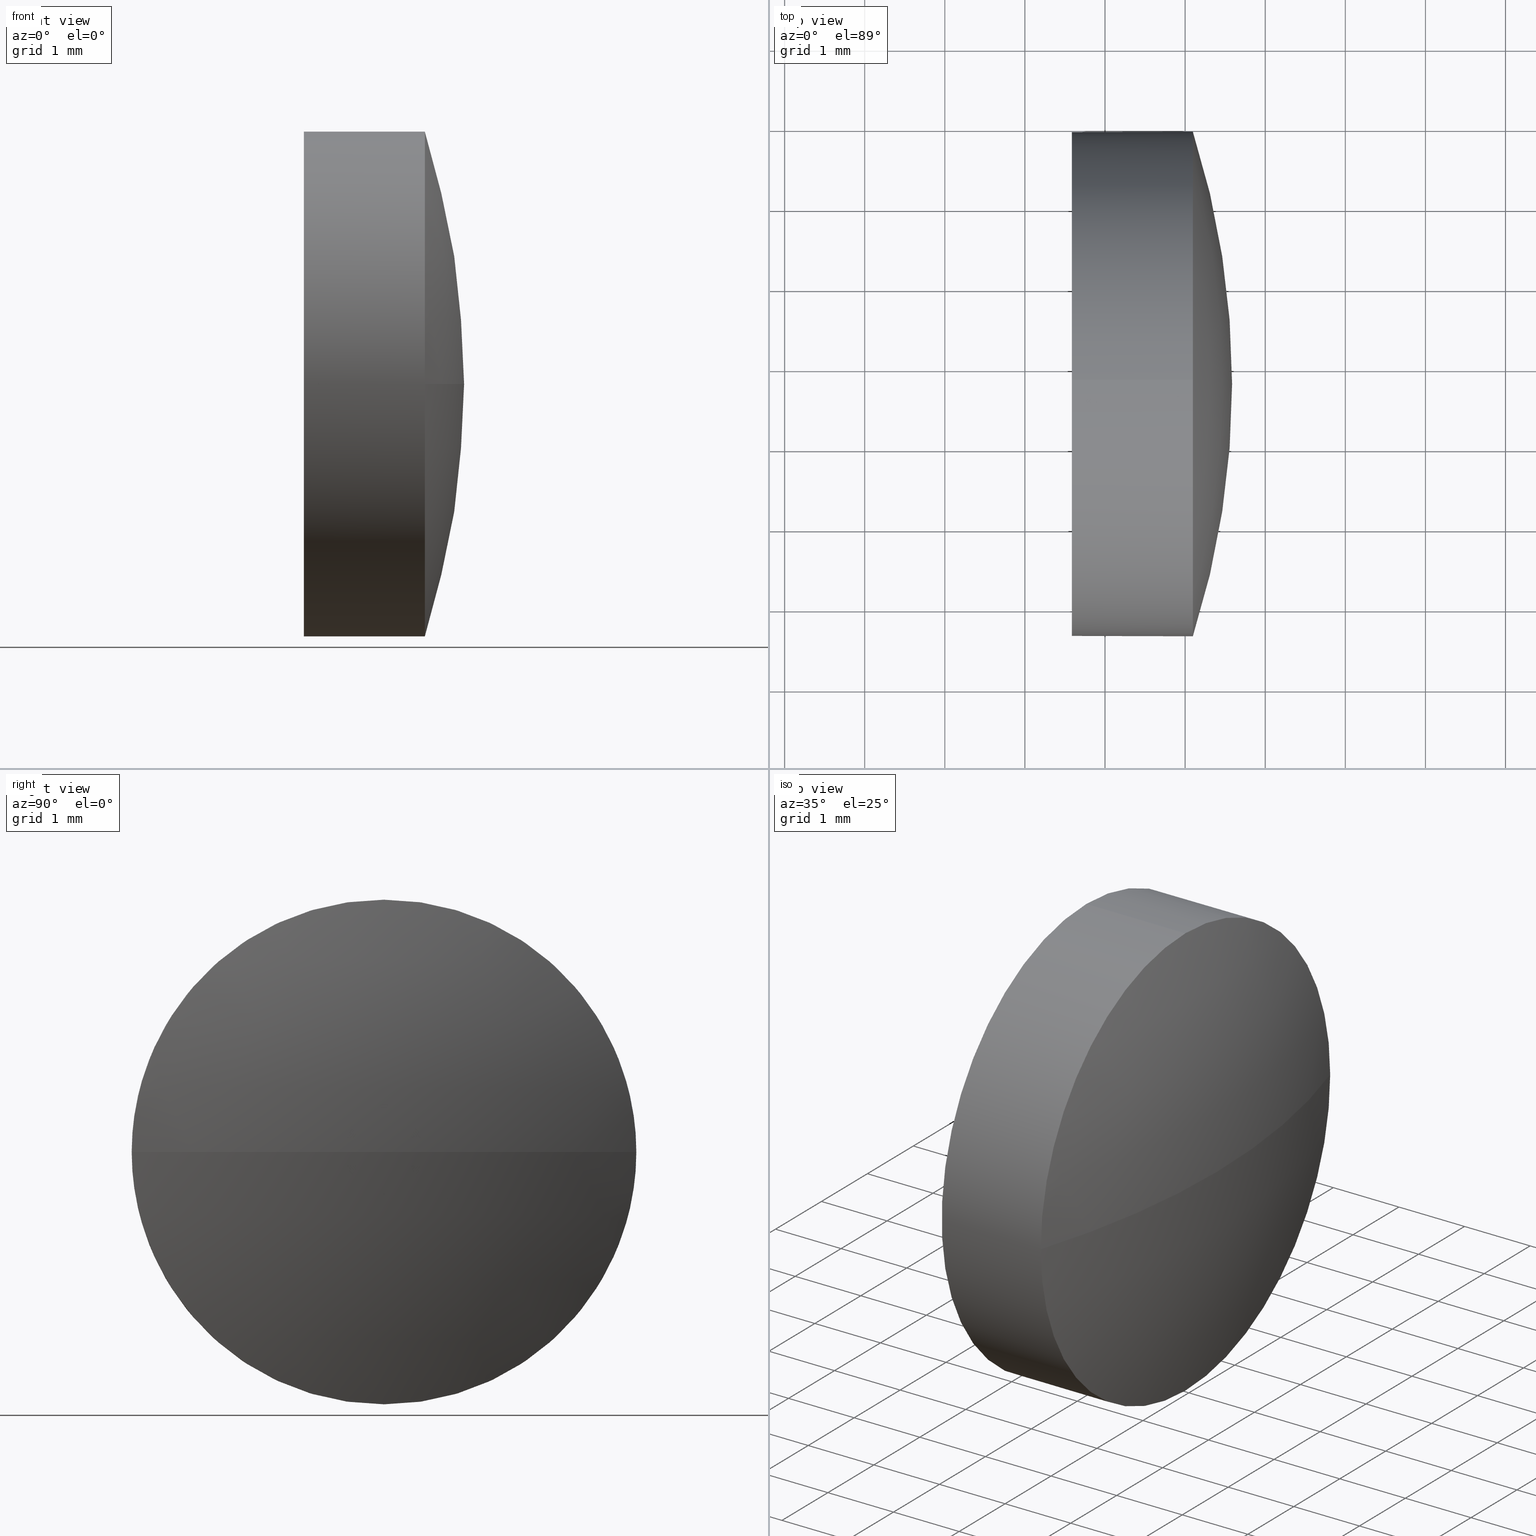
[diagram: canonical four-view strip — front | top / right | iso, engineering-drawing reading convention]
A machine part, canonical four-view strip (front | top / right | iso — engineering-drawing reading convention). The complete STEP part file that produces these views, byte-faithful:
ISO-10303-21;
HEADER;
FILE_DESCRIPTION (( 'STEP AP214' ),
    '1' );
FILE_NAME ('100010.STEP',
    '2019-04-19T06:21:23',
    ( '' ),
    ( '' ),
    'SwSTEP 2.0',
    'SolidWorks 2016',
    '' );
FILE_SCHEMA (( 'AUTOMOTIVE_DESIGN' ));
ENDSEC;

DATA;
#1 = CARTESIAN_POINT ( 'NONE',  ( 499.5865941383895000, 112.7888820155200000, 0.0000000000000000000 ) ) ;
#2 =( NAMED_UNIT ( * ) PLANE_ANGLE_UNIT ( ) SI_UNIT ( $, .RADIAN. ) );
#3 = FILL_AREA_STYLE_COLOUR ( '', #139 ) ;
#4 = CARTESIAN_POINT ( 'NONE',  ( 499.0965941383895500, 112.7888820155200200, 0.0000000000000000000 ) ) ;
#5 = PRESENTATION_STYLE_ASSIGNMENT (( #88 ) ) ;
#6 = DIRECTION ( 'NONE',  ( -0.0000000000000000000, 0.0000000000000000000, 1.000000000000000000 ) ) ;
#7 = SURFACE_SIDE_STYLE ('',( #86 ) ) ;
#8 = STYLED_ITEM ( 'NONE', ( #104 ), #20 ) ;
#9 = DIRECTION ( 'NONE',  ( 0.0000000000000000000, 0.0000000000000000000, 1.000000000000000000 ) ) ;
#10 = CIRCLE ( 'NONE', #114, 3.149999999999999900 ) ;
#11 = DIRECTION ( 'NONE',  ( -1.000000000000000000, -0.0000000000000000000, -0.0000000000000000000 ) ) ;
#12 = FACE_OUTER_BOUND ( 'NONE', #133, .T. ) ;
#13 = ORIENTED_EDGE ( 'NONE', *, *, #16, .F. ) ;
#14 = FACE_OUTER_BOUND ( 'NONE', #40, .T. ) ;
#15 = ORIENTED_EDGE ( 'NONE', *, *, #157, .T. ) ;
#16 = EDGE_CURVE ( 'NONE', #123, #110, #154, .T. ) ;
#17 = CARTESIAN_POINT ( 'NONE',  ( 499.0965941383895500, 112.7888820155200200, 0.0000000000000000000 ) ) ;
#18 = CYLINDRICAL_SURFACE ( 'NONE', #27, 3.149999999999999900 ) ;
#19 = FILL_AREA_STYLE ('',( #3 ) ) ;
#20 = MANIFOLD_SOLID_BREP ( '��ת1', #70 ) ;
#21 = DIRECTION ( 'NONE',  ( 1.000000000000000000, 0.0000000000000000000, 0.0000000000000000000 ) ) ;
#22 = EDGE_CURVE ( 'NONE', #118, #127, #58, .T. ) ;
#23 = ADVANCED_FACE ( 'NONE', ( #79 ), #69, .T. ) ;
#24 = CIRCLE ( 'NONE', #167, 3.149999999999999900 ) ;
#25 = VECTOR ( 'NONE', #166, 1000.000000000000000 ) ;
#26 = DIRECTION ( 'NONE',  ( -0.0000000000000000000, 0.0000000000000000000, -1.000000000000000000 ) ) ;
#27 = AXIS2_PLACEMENT_3D ( 'NONE', #174, #32, #92 ) ;
#28 = UNCERTAINTY_MEASURE_WITH_UNIT (LENGTH_MEASURE( 1.000000000000000100E-005 ), #137, 'distance_accuracy_value', 'NONE');
#29 = EDGE_LOOP ( 'NONE', ( #90, #107 ) ) ;
#30 = AXIS2_PLACEMENT_3D ( 'NONE', #101, #9, #112 ) ;
#31 = PLANE ( 'NONE',  #50 ) ;
#32 = DIRECTION ( 'NONE',  ( -1.000000000000000000, -0.0000000000000000000, -0.0000000000000000000 ) ) ;
#33 = PRODUCT_DEFINITION_SHAPE ( 'NONE', 'NONE',  #43 ) ;
#34 = CARTESIAN_POINT ( 'NONE',  ( 479.1000143024504000, 112.7888820155200200, 0.0000000000000000000 ) ) ;
#35 = EDGE_CURVE ( 'NONE', #186, #110, #136, .T. ) ;
#36 = CIRCLE ( 'NONE', #124, 10.36999999999999000 ) ;
#37 =( LENGTH_UNIT ( ) NAMED_UNIT ( * ) SI_UNIT ( .MILLI., .METRE. ) );
#38 = VERTEX_POINT ( 'NONE', #84 ) ;
#39 = CARTESIAN_POINT ( 'NONE',  ( 497.5865941383895000, 112.7888820155200200, -3.149999999999999900 ) ) ;
#40 = EDGE_LOOP ( 'NONE', ( #87, #15, #175, #151, #138 ) ) ;
#41 = PRODUCT_CONTEXT ( 'NONE', #129, 'mechanical' ) ;
#42 = ORIENTED_EDGE ( 'NONE', *, *, #162, .T. ) ;
#43 = PRODUCT_DEFINITION ( 'δ֪', '', #83, #169 ) ;
#44 = DIRECTION ( 'NONE',  ( 0.0000000000000000000, 0.0000000000000000000, 1.000000000000000000 ) ) ;
#45 = ORIENTED_EDGE ( 'NONE', *, *, #63, .T. ) ;
#46 = UNCERTAINTY_MEASURE_WITH_UNIT (LENGTH_MEASURE( 1.000000000000000100E-005 ), #62, 'distance_accuracy_value', 'NONE');
#47 = PRODUCT_RELATED_PRODUCT_CATEGORY ( 'part', '', ( #183 ) ) ;
#48 = EDGE_CURVE ( 'NONE', #180, #186, #141, .T. ) ;
#49 = ORIENTED_EDGE ( 'NONE', *, *, #91, .F. ) ;
#50 = AXIS2_PLACEMENT_3D ( 'NONE', #159, #134, #95 ) ;
#51 = DIRECTION ( 'NONE',  ( 0.0000000000000000000, 0.0000000000000000000, 1.000000000000000000 ) ) ;
#52 = ADVANCED_FACE ( 'NONE', ( #149 ), #31, .F. ) ;
#53 = CARTESIAN_POINT ( 'NONE',  ( 499.0965941383895500, 112.7888820155200200, 0.0000000000000000000 ) ) ;
#54 = ADVANCED_BREP_SHAPE_REPRESENTATION ( '100010', ( #20, #30 ), #106 ) ;
#55 = CARTESIAN_POINT ( 'NONE',  ( 497.5865941383895000, 112.7888820155200200, 3.149999999999999900 ) ) ;
#56 = CARTESIAN_POINT ( 'NONE',  ( 479.1000143024504000, 112.7888820155200200, -3.149999999999999900 ) ) ;
#57 = CARTESIAN_POINT ( 'NONE',  ( 489.2165941383895500, 112.7888820155200000, 0.0000000000000000000 ) ) ;
#58 = CIRCLE ( 'NONE', #170, 10.36999999999999000 ) ;
#59 = ORIENTED_EDGE ( 'NONE', *, *, #91, .T. ) ;
#60 = AXIS2_PLACEMENT_3D ( 'NONE', #97, #109, #122 ) ;
#61 = DIRECTION ( 'NONE',  ( 0.0000000000000000000, 0.0000000000000000000, 1.000000000000000000 ) ) ;
#62 =( LENGTH_UNIT ( ) NAMED_UNIT ( * ) SI_UNIT ( .MILLI., .METRE. ) );
#63 = EDGE_CURVE ( 'NONE', #123, #127, #94, .T. ) ;
#64 = EDGE_LOOP ( 'NONE', ( #59, #81, #121, #13, #45 ) ) ;
#65 = ADVANCED_FACE ( 'NONE', ( #14 ), #18, .T. ) ;
#66 = CARTESIAN_POINT ( 'NONE',  ( 499.0965941383895500, 115.9388820155200200, 0.0000000000000000000 ) ) ;
#67 = AXIS2_PLACEMENT_3D ( 'NONE', #164, #26, #177 ) ;
#68 = DIRECTION ( 'NONE',  ( 0.0000000000000000000, 0.0000000000000000000, 1.000000000000000000 ) ) ;
#69 = CYLINDRICAL_SURFACE ( 'NONE', #171, 3.149999999999999900 ) ;
#70 = CLOSED_SHELL ( 'NONE', ( #23, #150, #126, #65, #52 ) ) ;
#71 = CARTESIAN_POINT ( 'NONE',  ( 499.0965941383895500, 112.7888820155200200, 3.149999999999999900 ) ) ;
#72 = ORIENTED_EDGE ( 'NONE', *, *, #157, .F. ) ;
#73 = SURFACE_SIDE_STYLE ('',( #185 ) ) ;
#74 = APPLICATION_PROTOCOL_DEFINITION ( 'draft international standard', 'automotive_design', 1998, #102 ) ;
#75 = FILL_AREA_STYLE_COLOUR ( '', #100 ) ;
#76 = EDGE_CURVE ( 'NONE', #38, #123, #135, .T. ) ;
#77 =( NAMED_UNIT ( * ) PLANE_ANGLE_UNIT ( ) SI_UNIT ( $, .RADIAN. ) );
#78 = SHAPE_DEFINITION_REPRESENTATION ( #33, #54 ) ;
#79 = FACE_OUTER_BOUND ( 'NONE', #64, .T. ) ;
#80 = PRESENTATION_LAYER_ASSIGNMENT (  '', '', ( #8 ) ) ;
#81 = ORIENTED_EDGE ( 'NONE', *, *, #48, .T. ) ;
#82 = DIRECTION ( 'NONE',  ( -1.000000000000000000, -0.0000000000000000000, -0.0000000000000000000 ) ) ;
#83 = PRODUCT_DEFINITION_FORMATION_WITH_SPECIFIED_SOURCE ( '�κ�', '', #183, .NOT_KNOWN. ) ;
#84 = CARTESIAN_POINT ( 'NONE',  ( 499.0965941383895500, 109.6388820155200200, -3.857637417314150900E-016 ) ) ;
#85 = EDGE_LOOP ( 'NONE', ( #115, #42, #72, #49 ) ) ;
#86 = SURFACE_STYLE_FILL_AREA ( #156 ) ;
#87 = ORIENTED_EDGE ( 'NONE', *, *, #48, .F. ) ;
#88 = SURFACE_STYLE_USAGE ( .BOTH. , #7 ) ;
#89 = DIRECTION ( 'NONE',  ( 0.0000000000000000000, 0.0000000000000000000, 1.000000000000000000 ) ) ;
#90 = ORIENTED_EDGE ( 'NONE', *, *, #96, .T. ) ;
#91 = EDGE_CURVE ( 'NONE', #127, #180, #161, .T. ) ;
#92 = DIRECTION ( 'NONE',  ( 0.0000000000000000000, 0.0000000000000000000, 1.000000000000000000 ) ) ;
#93 = DIRECTION ( 'NONE',  ( -1.000000000000000000, -0.0000000000000000000, -0.0000000000000000000 ) ) ;
#94 = CIRCLE ( 'NONE', #105, 3.149999999999999900 ) ;
#95 = DIRECTION ( 'NONE',  ( 0.0000000000000000000, 0.0000000000000000000, -1.000000000000000000 ) ) ;
#96 = EDGE_CURVE ( 'NONE', #110, #186, #24, .T. ) ;
#97 = CARTESIAN_POINT ( 'NONE',  ( 497.5865941383895000, 112.7888820155200200, 0.0000000000000000000 ) ) ;
#98 = CARTESIAN_POINT ( 'NONE',  ( 499.0965941383895500, 112.7888820155200200, -3.149999999999999900 ) ) ;
#99 =( GEOMETRIC_REPRESENTATION_CONTEXT ( 3 ) GLOBAL_UNCERTAINTY_ASSIGNED_CONTEXT ( ( #163 ) ) GLOBAL_UNIT_ASSIGNED_CONTEXT ( ( #37, #2, #108 ) ) REPRESENTATION_CONTEXT ( 'NONE', 'WORKASPACE' ) );
#100 = COLOUR_RGB ( '',1.000000000000000000, 1.000000000000000000, 1.000000000000000000 ) ;
#101 = CARTESIAN_POINT ( 'NONE',  ( 0.0000000000000000000, 0.0000000000000000000, 0.0000000000000000000 ) ) ;
#102 = APPLICATION_CONTEXT ( 'automotive_design' ) ;
#103 = CARTESIAN_POINT ( 'NONE',  ( 497.5865941383895000, 112.7888820155200200, 0.0000000000000000000 ) ) ;
#104 = PRESENTATION_STYLE_ASSIGNMENT (( #182 ) ) ;
#105 = AXIS2_PLACEMENT_3D ( 'NONE', #17, #82, #51 ) ;
#106 =( GEOMETRIC_REPRESENTATION_CONTEXT ( 3 ) GLOBAL_UNCERTAINTY_ASSIGNED_CONTEXT ( ( #28 ) ) GLOBAL_UNIT_ASSIGNED_CONTEXT ( ( #137, #77, #168 ) ) REPRESENTATION_CONTEXT ( 'NONE', 'WORKASPACE' ) );
#107 = ORIENTED_EDGE ( 'NONE', *, *, #35, .T. ) ;
#108 =( NAMED_UNIT ( * ) SI_UNIT ( $, .STERADIAN. ) SOLID_ANGLE_UNIT ( ) );
#109 = DIRECTION ( 'NONE',  ( -1.000000000000000000, -0.0000000000000000000, -0.0000000000000000000 ) ) ;
#110 = VERTEX_POINT ( 'NONE', #55 ) ;
#111 =( NAMED_UNIT ( * ) SI_UNIT ( $, .STERADIAN. ) SOLID_ANGLE_UNIT ( ) );
#112 = DIRECTION ( 'NONE',  ( 1.000000000000000000, 0.0000000000000000000, 0.0000000000000000000 ) ) ;
#113 = FACE_OUTER_BOUND ( 'NONE', #85, .T. ) ;
#114 = AXIS2_PLACEMENT_3D ( 'NONE', #181, #11, #44 ) ;
#115 = ORIENTED_EDGE ( 'NONE', *, *, #22, .F. ) ;
#116 = DIRECTION ( 'NONE',  ( 0.0000000000000000000, 1.000000000000000000, 1.224646799147353900E-016 ) ) ;
#117 = CARTESIAN_POINT ( 'NONE',  ( 479.1000143024504000, 112.7888820155200200, 3.149999999999999900 ) ) ;
#118 = VERTEX_POINT ( 'NONE', #1 ) ;
#119 = AXIS2_PLACEMENT_3D ( 'NONE', #53, #93, #147 ) ;
#120 = AXIS2_PLACEMENT_3D ( 'NONE', #57, #125, #155 ) ;
#121 = ORIENTED_EDGE ( 'NONE', *, *, #96, .F. ) ;
#122 = DIRECTION ( 'NONE',  ( 0.0000000000000000000, 0.0000000000000000000, 1.000000000000000000 ) ) ;
#123 = VERTEX_POINT ( 'NONE', #71 ) ;
#124 = AXIS2_PLACEMENT_3D ( 'NONE', #153, #165, #116 ) ;
#125 = DIRECTION ( 'NONE',  ( -0.0000000000000000000, 0.0000000000000000000, -1.000000000000000000 ) ) ;
#126 = ADVANCED_FACE ( 'NONE', ( #12 ), #160, .T. ) ;
#127 = VERTEX_POINT ( 'NONE', #66 ) ;
#128 = AXIS2_PLACEMENT_3D ( 'NONE', #4, #140, #89 ) ;
#129 = APPLICATION_CONTEXT ( 'automotive_design' ) ;
#130 =( NAMED_UNIT ( * ) PLANE_ANGLE_UNIT ( ) SI_UNIT ( $, .RADIAN. ) );
#131 = SPHERICAL_SURFACE ( 'NONE', #67, 10.36999999999999700 ) ;
#132 = STYLED_ITEM ( 'NONE', ( #5 ), #54 ) ;
#133 = EDGE_LOOP ( 'NONE', ( #144, #176, #158, #184 ) ) ;
#134 = DIRECTION ( 'NONE',  ( 1.000000000000000000, 0.0000000000000000000, 0.0000000000000000000 ) ) ;
#135 = CIRCLE ( 'NONE', #119, 3.149999999999999900 ) ;
#136 = CIRCLE ( 'NONE', #60, 3.149999999999999900 ) ;
#137 =( LENGTH_UNIT ( ) NAMED_UNIT ( * ) SI_UNIT ( .MILLI., .METRE. ) );
#138 = ORIENTED_EDGE ( 'NONE', *, *, #35, .F. ) ;
#139 = COLOUR_RGB ( '',1.000000000000000000, 1.000000000000000000, 1.000000000000000000 ) ;
#140 = DIRECTION ( 'NONE',  ( -1.000000000000000000, -0.0000000000000000000, -0.0000000000000000000 ) ) ;
#141 = LINE ( 'NONE', #56, #178 ) ;
#142 = DIRECTION ( 'NONE',  ( -1.000000000000000000, -0.0000000000000000000, -0.0000000000000000000 ) ) ;
#143 = MECHANICAL_DESIGN_GEOMETRIC_PRESENTATION_REPRESENTATION (  '', ( #8 ), #99 ) ;
#144 = ORIENTED_EDGE ( 'NONE', *, *, #162, .F. ) ;
#145 =( GEOMETRIC_REPRESENTATION_CONTEXT ( 3 ) GLOBAL_UNCERTAINTY_ASSIGNED_CONTEXT ( ( #46 ) ) GLOBAL_UNIT_ASSIGNED_CONTEXT ( ( #62, #130, #111 ) ) REPRESENTATION_CONTEXT ( 'NONE', 'WORKASPACE' ) );
#146 = DIRECTION ( 'NONE',  ( -1.000000000000000000, -0.0000000000000000000, -0.0000000000000000000 ) ) ;
#147 = DIRECTION ( 'NONE',  ( 0.0000000000000000000, 0.0000000000000000000, 1.000000000000000000 ) ) ;
#148 = DIRECTION ( 'NONE',  ( -1.000000000000000000, -0.0000000000000000000, -0.0000000000000000000 ) ) ;
#149 = FACE_OUTER_BOUND ( 'NONE', #29, .T. ) ;
#150 = ADVANCED_FACE ( 'NONE', ( #113 ), #131, .T. ) ;
#151 = ORIENTED_EDGE ( 'NONE', *, *, #16, .T. ) ;
#152 = MECHANICAL_DESIGN_GEOMETRIC_PRESENTATION_REPRESENTATION (  '', ( #132 ), #145 ) ;
#153 = CARTESIAN_POINT ( 'NONE',  ( 489.2165941383895500, 112.7888820155200000, 0.0000000000000000000 ) ) ;
#154 = LINE ( 'NONE', #117, #25 ) ;
#155 = DIRECTION ( 'NONE',  ( 0.0000000000000000000, 1.000000000000000000, 0.0000000000000000000 ) ) ;
#156 = FILL_AREA_STYLE ('',( #75 ) ) ;
#157 = EDGE_CURVE ( 'NONE', #180, #38, #10, .T. ) ;
#158 = ORIENTED_EDGE ( 'NONE', *, *, #63, .F. ) ;
#159 = CARTESIAN_POINT ( 'NONE',  ( 497.5865941383895000, 112.7888820155200200, 0.0000000000000000000 ) ) ;
#160 = SPHERICAL_SURFACE ( 'NONE', #120, 10.36999999999999700 ) ;
#161 = CIRCLE ( 'NONE', #128, 3.149999999999999900 ) ;
#162 = EDGE_CURVE ( 'NONE', #118, #38, #36, .T. ) ;
#163 = UNCERTAINTY_MEASURE_WITH_UNIT (LENGTH_MEASURE( 1.000000000000000100E-005 ), #37, 'distance_accuracy_value', 'NONE');
#164 = CARTESIAN_POINT ( 'NONE',  ( 489.2165941383895500, 112.7888820155200000, 0.0000000000000000000 ) ) ;
#165 = DIRECTION ( 'NONE',  ( 0.0000000000000000000, 1.224646799147353200E-016, -1.000000000000000000 ) ) ;
#166 = DIRECTION ( 'NONE',  ( -1.000000000000000000, -0.0000000000000000000, -0.0000000000000000000 ) ) ;
#167 = AXIS2_PLACEMENT_3D ( 'NONE', #103, #142, #61 ) ;
#168 =( NAMED_UNIT ( * ) SI_UNIT ( $, .STERADIAN. ) SOLID_ANGLE_UNIT ( ) );
#169 = PRODUCT_DEFINITION_CONTEXT ( 'detailed design', #102, 'design' ) ;
#170 = AXIS2_PLACEMENT_3D ( 'NONE', #172, #6, #21 ) ;
#171 = AXIS2_PLACEMENT_3D ( 'NONE', #34, #148, #68 ) ;
#172 = CARTESIAN_POINT ( 'NONE',  ( 489.2165941383895500, 112.7888820155200000, 0.0000000000000000000 ) ) ;
#173 = PRESENTATION_LAYER_ASSIGNMENT (  '', '', ( #132 ) ) ;
#174 = CARTESIAN_POINT ( 'NONE',  ( 479.1000143024504000, 112.7888820155200200, 0.0000000000000000000 ) ) ;
#175 = ORIENTED_EDGE ( 'NONE', *, *, #76, .T. ) ;
#176 = ORIENTED_EDGE ( 'NONE', *, *, #22, .T. ) ;
#177 = DIRECTION ( 'NONE',  ( 0.0000000000000000000, 1.000000000000000000, 0.0000000000000000000 ) ) ;
#178 = VECTOR ( 'NONE', #146, 1000.000000000000000 ) ;
#179 = APPLICATION_PROTOCOL_DEFINITION ( 'draft international standard', 'automotive_design', 1998, #129 ) ;
#180 = VERTEX_POINT ( 'NONE', #98 ) ;
#181 = CARTESIAN_POINT ( 'NONE',  ( 499.0965941383895500, 112.7888820155200200, 0.0000000000000000000 ) ) ;
#182 = SURFACE_STYLE_USAGE ( .BOTH. , #73 ) ;
#183 = PRODUCT ( '100010', '100010', '', ( #41 ) ) ;
#184 = ORIENTED_EDGE ( 'NONE', *, *, #76, .F. ) ;
#185 = SURFACE_STYLE_FILL_AREA ( #19 ) ;
#186 = VERTEX_POINT ( 'NONE', #39 ) ;
ENDSEC;
END-ISO-10303-21;
